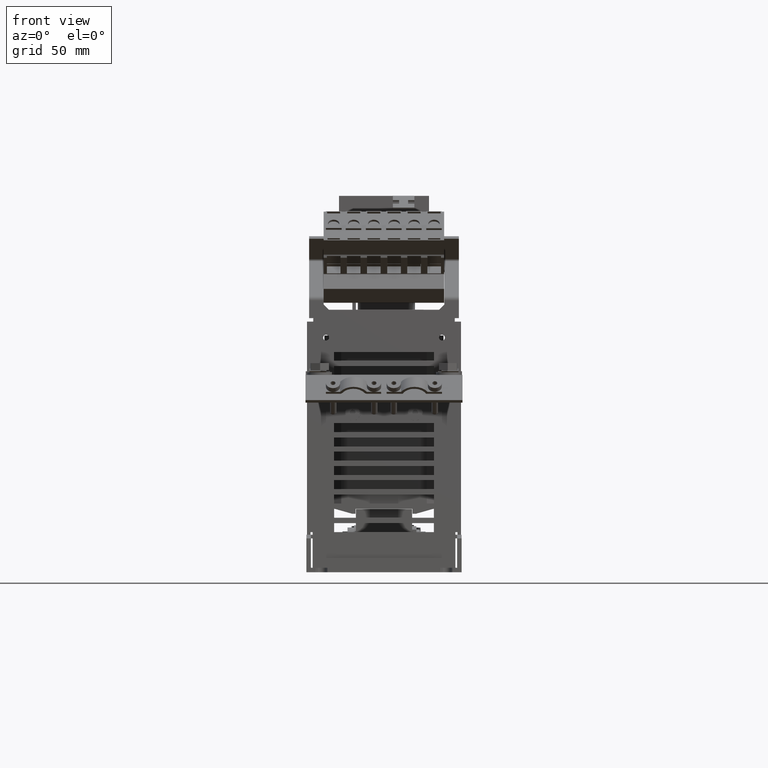
[diagram: clean part render]
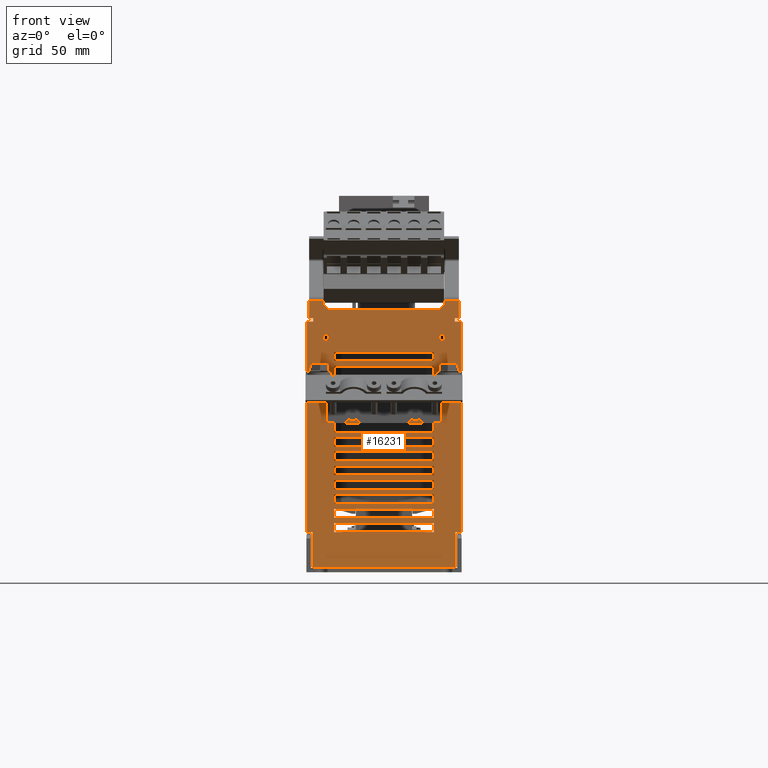
[diagram: same view with one face highlighted and labeled with its STEP entity id]
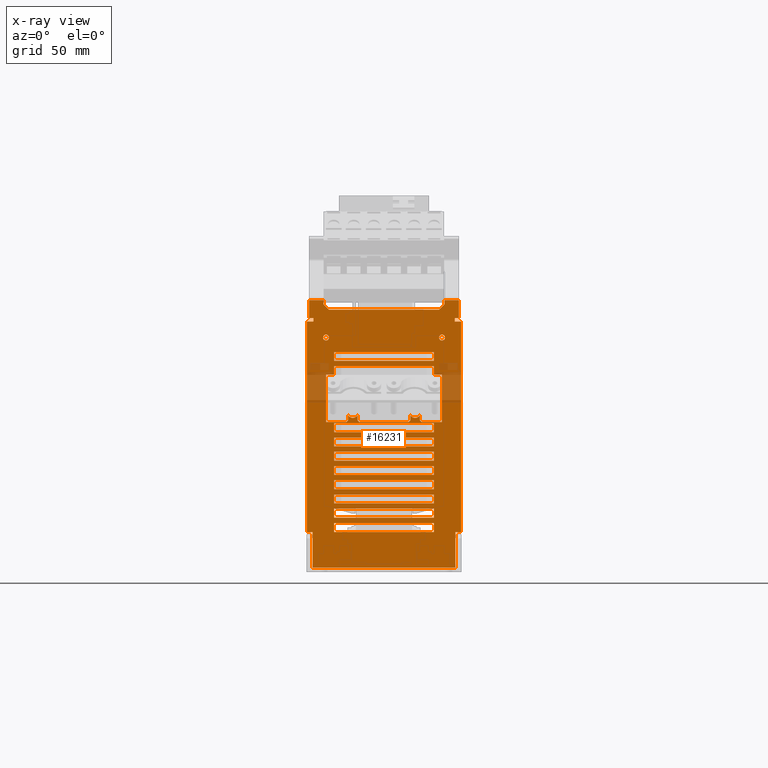
[diagram: x-ray of the same camera — body ghosted, the highlighted face saturated]
A machine part, front view. The second image highlights one B-rep face of the part: STEP entity #16231.
The next image is the same camera in x-ray: the body ghosted, the highlighted face saturated — about 6% of this face is hidden behind the body in this view.
In plain terms, the highlighted planar face has unit normal (0, -1, 0).
Its self-contained STEP definition (entity closure, byte-faithful):
#840=DIRECTION('',(0.E0,0.E0,1.E0));
#841=VECTOR('',#840,2.65E1);
#842=CARTESIAN_POINT('',(3.25E1,-1.21E2,8.165E1));
#843=LINE('',#842,#841);
#848=DIRECTION('',(0.E0,0.E0,-1.E0));
#849=VECTOR('',#848,1.18E2);
#850=CARTESIAN_POINT('',(4.32E1,-1.21E2,1.38E2));
#851=LINE('',#850,#849);
#852=DIRECTION('',(1.E0,0.E0,0.E0));
#853=VECTOR('',#852,3.2E0);
#854=CARTESIAN_POINT('',(4.E1,-1.21E2,2.E1));
#855=LINE('',#854,#853);
#856=DIRECTION('',(0.E0,0.E0,1.E0));
#857=VECTOR('',#856,2.E1);
#858=CARTESIAN_POINT('',(4.E1,-1.21E2,-5.426770144368E-13));
#859=LINE('',#858,#857);
#860=DIRECTION('',(0.E0,0.E0,-1.E0));
#861=VECTOR('',#860,2.E1);
#862=CARTESIAN_POINT('',(-4.E1,-1.21E2,2.E1));
#863=LINE('',#862,#861);
#864=DIRECTION('',(1.E0,0.E0,0.E0));
#865=VECTOR('',#864,3.2E0);
#866=CARTESIAN_POINT('',(-4.32E1,-1.21E2,2.E1));
#867=LINE('',#866,#865);
#868=DIRECTION('',(0.E0,0.E0,1.E0));
#869=VECTOR('',#868,1.18E2);
#870=CARTESIAN_POINT('',(-4.32E1,-1.21E2,2.E1));
#871=LINE('',#870,#869);
#872=DIRECTION('',(-1.E0,0.E0,0.E0));
#873=VECTOR('',#872,3.5E0);
#874=CARTESIAN_POINT('',(-3.97E1,-1.21E2,1.38E2));
#875=LINE('',#874,#873);
#876=DIRECTION('',(0.E0,0.E0,-1.E0));
#877=VECTOR('',#876,2.E0);
#878=CARTESIAN_POINT('',(-3.97E1,-1.21E2,1.4E2));
#879=LINE('',#878,#877);
#880=DIRECTION('',(-1.E0,0.E0,0.E0));
#881=VECTOR('',#880,8.149800000002E0);
#882=CARTESIAN_POINT('',(-3.38502E1,-1.21E2,1.5E2));
#883=LINE('',#882,#881);
#884=DIRECTION('',(1.032742452712E-4,0.E0,-9.999999946672E-1));
#885=VECTOR('',#884,9.682956180222E-1);
#886=CARTESIAN_POINT('',(-3.38502E1,-1.21E2,1.5E2));
#887=LINE('',#886,#885);
#888=DIRECTION('',(7.165725890175E-5,0.E0,-9.999999974326E-1));
#889=VECTOR('',#888,1.395532018732E0);
#890=CARTESIAN_POINT('',(-3.38501E1,-1.21E2,1.490317043871E2));
#891=LINE('',#890,#889);
#892=DIRECTION('',(7.071067811866E-1,0.E0,-7.071067811865E-1));
#893=VECTOR('',#892,4.242640687119E0);
#894=CARTESIAN_POINT('',(-3.385E1,-1.21E2,1.476361723720E2));
#895=LINE('',#894,#893);
#896=DIRECTION('',(1.E0,0.E0,0.E0));
#897=VECTOR('',#896,6.17E1);
#898=CARTESIAN_POINT('',(-3.085E1,-1.21E2,1.446361723720E2));
#899=LINE('',#898,#897);
#900=DIRECTION('',(7.071067811866E-1,0.E0,7.071067811865E-1));
#901=VECTOR('',#900,4.242640687119E0);
#902=CARTESIAN_POINT('',(3.085E1,-1.21E2,1.446361723720E2));
#903=LINE('',#902,#901);
#904=DIRECTION('',(0.E0,0.E0,-1.E0));
#905=VECTOR('',#904,2.363827628008E0);
#906=CARTESIAN_POINT('',(3.385E1,-1.21E2,1.5E2));
#907=LINE('',#906,#905);
#908=DIRECTION('',(-1.E0,0.E0,0.E0));
#909=VECTOR('',#908,8.15E0);
#910=CARTESIAN_POINT('',(4.2E1,-1.21E2,1.5E2));
#911=LINE('',#910,#909);
#912=DIRECTION('',(0.E0,0.E0,1.E0));
#913=VECTOR('',#912,2.E0);
#914=CARTESIAN_POINT('',(3.97E1,-1.21E2,1.38E2));
#915=LINE('',#914,#913);
#916=DIRECTION('',(-1.E0,0.E0,0.E0));
#917=VECTOR('',#916,3.5E0);
#918=CARTESIAN_POINT('',(4.32E1,-1.21E2,1.38E2));
#919=LINE('',#918,#917);
#920=DIRECTION('',(0.E0,0.E0,1.E0));
#921=VECTOR('',#920,5.E0);
#922=CARTESIAN_POINT('',(2.8E1,-1.21E2,2.E1));
#923=LINE('',#922,#921);
#924=DIRECTION('',(-1.E0,0.E0,0.E0));
#925=VECTOR('',#924,5.6E1);
#926=CARTESIAN_POINT('',(2.8E1,-1.21E2,2.5E1));
#927=LINE('',#926,#925);
#928=DIRECTION('',(0.E0,0.E0,-1.E0));
#929=VECTOR('',#928,5.E0);
#930=CARTESIAN_POINT('',(-2.8E1,-1.21E2,2.5E1));
#931=LINE('',#930,#929);
#932=DIRECTION('',(1.E0,0.E0,0.E0));
#933=VECTOR('',#932,5.6E1);
#934=CARTESIAN_POINT('',(-2.8E1,-1.21E2,2.E1));
#935=LINE('',#934,#933);
#936=DIRECTION('',(0.E0,0.E0,1.E0));
#937=VECTOR('',#936,5.E0);
#938=CARTESIAN_POINT('',(2.8E1,-1.21E2,2.8E1));
#939=LINE('',#938,#937);
#940=DIRECTION('',(-1.E0,0.E0,0.E0));
#941=VECTOR('',#940,5.6E1);
#942=CARTESIAN_POINT('',(2.8E1,-1.21E2,3.3E1));
#943=LINE('',#942,#941);
#944=DIRECTION('',(0.E0,0.E0,-1.E0));
#945=VECTOR('',#944,5.E0);
#946=CARTESIAN_POINT('',(-2.8E1,-1.21E2,3.3E1));
#947=LINE('',#946,#945);
#948=DIRECTION('',(1.E0,0.E0,0.E0));
#949=VECTOR('',#948,5.6E1);
#950=CARTESIAN_POINT('',(-2.8E1,-1.21E2,2.8E1));
#951=LINE('',#950,#949);
#952=DIRECTION('',(0.E0,0.E0,1.E0));
#953=VECTOR('',#952,5.E0);
#954=CARTESIAN_POINT('',(2.8E1,-1.21E2,3.6E1));
#955=LINE('',#954,#953);
#956=DIRECTION('',(-1.E0,0.E0,0.E0));
#957=VECTOR('',#956,5.6E1);
#958=CARTESIAN_POINT('',(2.8E1,-1.21E2,4.1E1));
#959=LINE('',#958,#957);
#960=DIRECTION('',(0.E0,0.E0,-1.E0));
#961=VECTOR('',#960,5.E0);
#962=CARTESIAN_POINT('',(-2.8E1,-1.21E2,4.1E1));
#963=LINE('',#962,#961);
#964=DIRECTION('',(1.E0,0.E0,0.E0));
#965=VECTOR('',#964,5.6E1);
#966=CARTESIAN_POINT('',(-2.8E1,-1.21E2,3.6E1));
#967=LINE('',#966,#965);
#968=DIRECTION('',(0.E0,0.E0,1.E0));
#969=VECTOR('',#968,5.E0);
#970=CARTESIAN_POINT('',(2.8E1,-1.21E2,4.4E1));
#971=LINE('',#970,#969);
#972=DIRECTION('',(-1.E0,0.E0,0.E0));
#973=VECTOR('',#972,5.6E1);
#974=CARTESIAN_POINT('',(2.8E1,-1.21E2,4.9E1));
#975=LINE('',#974,#973);
#976=DIRECTION('',(0.E0,0.E0,-1.E0));
#977=VECTOR('',#976,5.E0);
#978=CARTESIAN_POINT('',(-2.8E1,-1.21E2,4.9E1));
#979=LINE('',#978,#977);
#980=DIRECTION('',(1.E0,0.E0,0.E0));
#981=VECTOR('',#980,5.6E1);
#982=CARTESIAN_POINT('',(-2.8E1,-1.21E2,4.4E1));
#983=LINE('',#982,#981);
#984=DIRECTION('',(0.E0,0.E0,1.E0));
#985=VECTOR('',#984,5.E0);
#986=CARTESIAN_POINT('',(2.8E1,-1.21E2,5.2E1));
#987=LINE('',#986,#985);
#988=DIRECTION('',(-1.E0,0.E0,0.E0));
#989=VECTOR('',#988,5.6E1);
#990=CARTESIAN_POINT('',(2.8E1,-1.21E2,5.7E1));
#991=LINE('',#990,#989);
#992=DIRECTION('',(0.E0,0.E0,-1.E0));
#993=VECTOR('',#992,5.E0);
#994=CARTESIAN_POINT('',(-2.8E1,-1.21E2,5.7E1));
#995=LINE('',#994,#993);
#996=DIRECTION('',(1.E0,0.E0,0.E0));
#997=VECTOR('',#996,5.6E1);
#998=CARTESIAN_POINT('',(-2.8E1,-1.21E2,5.2E1));
#999=LINE('',#998,#997);
#1000=DIRECTION('',(0.E0,0.E0,1.E0));
#1001=VECTOR('',#1000,5.E0);
#1002=CARTESIAN_POINT('',(2.8E1,-1.21E2,6.E1));
#1003=LINE('',#1002,#1001);
#1004=DIRECTION('',(-1.E0,0.E0,0.E0));
#1005=VECTOR('',#1004,5.6E1);
#1006=CARTESIAN_POINT('',(2.8E1,-1.21E2,6.5E1));
#1007=LINE('',#1006,#1005);
#1008=DIRECTION('',(0.E0,0.E0,-1.E0));
#1009=VECTOR('',#1008,5.E0);
#1010=CARTESIAN_POINT('',(-2.8E1,-1.21E2,6.5E1));
#1011=LINE('',#1010,#1009);
#1012=DIRECTION('',(1.E0,0.E0,0.E0));
#1013=VECTOR('',#1012,5.6E1);
#1014=CARTESIAN_POINT('',(-2.8E1,-1.21E2,6.E1));
#1015=LINE('',#1014,#1013);
#1016=DIRECTION('',(-1.E0,0.E0,0.E0));
#1017=VECTOR('',#1016,5.6E1);
#1018=CARTESIAN_POINT('',(2.8E1,-1.21E2,7.3E1));
#1019=LINE('',#1018,#1017);
#1020=DIRECTION('',(0.E0,0.E0,-1.E0));
#1021=VECTOR('',#1020,5.E0);
#1022=CARTESIAN_POINT('',(-2.8E1,-1.21E2,7.3E1));
#1023=LINE('',#1022,#1021);
#1024=DIRECTION('',(1.E0,0.E0,0.E0));
#1025=VECTOR('',#1024,5.6E1);
#1026=CARTESIAN_POINT('',(-2.8E1,-1.21E2,6.8E1));
#1027=LINE('',#1026,#1025);
#1028=DIRECTION('',(0.E0,0.E0,1.E0));
#1029=VECTOR('',#1028,5.E0);
#1030=CARTESIAN_POINT('',(2.8E1,-1.21E2,6.8E1));
#1031=LINE('',#1030,#1029);
#1032=DIRECTION('',(0.E0,0.E0,1.E0));
#1033=VECTOR('',#1032,5.E0);
#1034=CARTESIAN_POINT('',(2.8E1,-1.21E2,7.6E1));
#1035=LINE('',#1034,#1033);
#1036=DIRECTION('',(-1.E0,0.E0,0.E0));
#1037=VECTOR('',#1036,5.6E1);
#1038=CARTESIAN_POINT('',(2.8E1,-1.21E2,8.1E1));
#1039=LINE('',#1038,#1037);
#1040=DIRECTION('',(0.E0,0.E0,-1.E0));
#1041=VECTOR('',#1040,5.E0);
#1042=CARTESIAN_POINT('',(-2.8E1,-1.21E2,8.1E1));
#1043=LINE('',#1042,#1041);
#1044=DIRECTION('',(1.E0,0.E0,0.E0));
#1045=VECTOR('',#1044,5.6E1);
#1046=CARTESIAN_POINT('',(-2.8E1,-1.21E2,7.6E1));
#1047=LINE('',#1046,#1045);
#1048=DIRECTION('',(0.E0,0.E0,1.E0));
#1049=VECTOR('',#1048,5.E0);
#1050=CARTESIAN_POINT('',(2.8E1,-1.21E2,1.16E2));
#1051=LINE('',#1050,#1049);
#1052=DIRECTION('',(-1.E0,0.E0,0.E0));
#1053=VECTOR('',#1052,5.6E1);
#1054=CARTESIAN_POINT('',(2.8E1,-1.21E2,1.21E2));
#1055=LINE('',#1054,#1053);
#1056=DIRECTION('',(0.E0,0.E0,-1.E0));
#1057=VECTOR('',#1056,5.E0);
#1058=CARTESIAN_POINT('',(-2.8E1,-1.21E2,1.21E2));
#1059=LINE('',#1058,#1057);
#1060=DIRECTION('',(1.E0,0.E0,0.E0));
#1061=VECTOR('',#1060,5.6E1);
#1062=CARTESIAN_POINT('',(-2.8E1,-1.21E2,1.16E2));
#1063=LINE('',#1062,#1061);
#1064=CARTESIAN_POINT('',(3.25E1,-1.21E2,1.29E2));
#1065=DIRECTION('',(0.E0,-1.E0,0.E0));
#1066=DIRECTION('',(-1.E0,0.E0,0.E0));
#1067=AXIS2_PLACEMENT_3D('',#1064,#1065,#1066);
#1069=CARTESIAN_POINT('',(3.25E1,-1.21E2,1.29E2));
#1070=DIRECTION('',(0.E0,-1.E0,0.E0));
#1071=DIRECTION('',(1.E0,0.E0,0.E0));
#1072=AXIS2_PLACEMENT_3D('',#1069,#1070,#1071);
#1074=CARTESIAN_POINT('',(-3.25E1,-1.21E2,1.29E2));
#1075=DIRECTION('',(0.E0,-1.E0,0.E0));
#1076=DIRECTION('',(-1.E0,0.E0,0.E0));
#1077=AXIS2_PLACEMENT_3D('',#1074,#1075,#1076);
#1079=CARTESIAN_POINT('',(-3.25E1,-1.21E2,1.29E2));
#1080=DIRECTION('',(0.E0,-1.E0,0.E0));
#1081=DIRECTION('',(1.E0,0.E0,0.E0));
#1082=AXIS2_PLACEMENT_3D('',#1079,#1080,#1081);
#1084=CARTESIAN_POINT('',(1.75E1,-1.21E2,8.7E1));
#1085=DIRECTION('',(0.E0,1.E0,0.E0));
#1086=DIRECTION('',(8.833333333333E-1,0.E0,-4.687453703475E-1));
#1087=AXIS2_PLACEMENT_3D('',#1084,#1085,#1086);
#1089=DIRECTION('',(0.E0,1.448233138042E-14,1.E0));
#1090=VECTOR('',#1089,2.943763888957E0);
#1091=CARTESIAN_POINT('',(2.015E1,-1.21E2,8.265E1));
#1092=LINE('',#1091,#1090);
#1093=DIRECTION('',(-7.071067811865E-1,-3.014577520673E-14,7.071067811866E-1));
#1094=VECTOR('',#1093,1.414213562373E0);
#1095=CARTESIAN_POINT('',(2.115E1,-1.21E2,8.165E1));
#1096=LINE('',#1095,#1094);
#1097=DIRECTION('',(1.E0,0.E0,0.E0));
#1098=VECTOR('',#1097,1.135E1);
#1099=CARTESIAN_POINT('',(2.115E1,-1.21E2,8.165E1));
#1100=LINE('',#1099,#1098);
#1101=DIRECTION('',(1.E0,0.E0,0.E0));
#1102=VECTOR('',#1101,4.5E0);
#1103=CARTESIAN_POINT('',(2.8E1,-1.21E2,1.0815E2));
#1104=LINE('',#1103,#1102);
#1105=DIRECTION('',(0.E0,0.E0,1.E0));
#1106=VECTOR('',#1105,4.85E0);
#1107=CARTESIAN_POINT('',(2.8E1,-1.21E2,1.0815E2));
#1108=LINE('',#1107,#1106);
#1109=DIRECTION('',(-1.E0,0.E0,0.E0));
#1110=VECTOR('',#1109,5.6E1);
#1111=CARTESIAN_POINT('',(2.8E1,-1.21E2,1.13E2));
#1112=LINE('',#1111,#1110);
#1113=DIRECTION('',(0.E0,0.E0,-1.E0));
#1114=VECTOR('',#1113,4.85E0);
#1115=CARTESIAN_POINT('',(-2.8E1,-1.21E2,1.13E2));
#1116=LINE('',#1115,#1114);
#1117=DIRECTION('',(1.E0,0.E0,0.E0));
#1118=VECTOR('',#1117,4.5E0);
#1119=CARTESIAN_POINT('',(-3.25E1,-1.21E2,1.0815E2));
#1120=LINE('',#1119,#1118);
#1121=DIRECTION('',(1.E0,0.E0,0.E0));
#1122=VECTOR('',#1121,1.135E1);
#1123=CARTESIAN_POINT('',(-3.25E1,-1.21E2,8.165E1));
#1124=LINE('',#1123,#1122);
#1125=DIRECTION('',(-7.071067811865E-1,2.009718347115E-14,-7.071067811866E-1));
#1126=VECTOR('',#1125,1.414213562373E0);
#1127=CARTESIAN_POINT('',(-2.015E1,-1.21E2,8.265E1));
#1128=LINE('',#1127,#1126);
#1129=DIRECTION('',(0.E0,-1.448233138042E-14,-1.E0));
#1130=VECTOR('',#1129,2.943763888957E0);
#1131=CARTESIAN_POINT('',(-2.015E1,-1.21E2,8.559376388896E1));
#1132=LINE('',#1131,#1130);
#1133=CARTESIAN_POINT('',(-1.75E1,-1.21E2,8.7E1));
#1134=DIRECTION('',(0.E0,1.E0,0.E0));
#1135=DIRECTION('',(8.833333333333E-1,0.E0,-4.687453703475E-1));
#1136=AXIS2_PLACEMENT_3D('',#1133,#1134,#1135);
#1138=DIRECTION('',(0.E0,1.930977517390E-14,1.E0));
#1139=VECTOR('',#1138,2.943763888958E0);
#1140=CARTESIAN_POINT('',(-1.485E1,-1.21E2,8.265E1));
#1141=LINE('',#1140,#1139);
#1142=DIRECTION('',(-7.071067811865E-1,-3.014577520673E-14,7.071067811866E-1));
#1143=VECTOR('',#1142,1.414213562373E0);
#1144=CARTESIAN_POINT('',(-1.385E1,-1.21E2,8.165E1));
#1145=LINE('',#1144,#1143);
#1146=DIRECTION('',(1.E0,0.E0,0.E0));
#1147=VECTOR('',#1146,2.77E1);
#1148=CARTESIAN_POINT('',(-1.385E1,-1.21E2,8.165E1));
#1149=LINE('',#1148,#1147);
#1150=DIRECTION('',(-7.071067811866E-1,1.004859173558E-14,-7.071067811865E-1));
#1151=VECTOR('',#1150,1.414213562373E0);
#1152=CARTESIAN_POINT('',(1.485E1,-1.21E2,8.265E1));
#1153=LINE('',#1152,#1151);
#1154=DIRECTION('',(0.E0,0.E0,-1.E0));
#1155=VECTOR('',#1154,2.943763888957E0);
#1156=CARTESIAN_POINT('',(1.485E1,-1.21E2,8.559376388896E1));
#1157=LINE('',#1156,#1155);
#5305=DIRECTION('',(0.E0,3.268496584496E-14,-1.E0));
#5306=VECTOR('',#5305,1.E1);
#5307=CARTESIAN_POINT('',(-4.2E1,-1.21E2,1.5E2));
#5308=LINE('',#5307,#5306);
#5309=DIRECTION('',(-1.E0,-1.482871796369E-13,0.E0));
#5310=VECTOR('',#5309,2.3E0);
#5311=CARTESIAN_POINT('',(4.2E1,-1.21E2,1.4E2));
#5312=LINE('',#5311,#5310);
#5313=DIRECTION('',(-1.E0,1.421085471520E-13,1.235726496974E-14));
#5314=VECTOR('',#5313,2.3E0);
#5315=CARTESIAN_POINT('',(-3.97E1,-1.21E2,1.4E2));
#5316=LINE('',#5315,#5314);
#5329=DIRECTION('',(0.E0,3.410605131648E-14,-1.E0));
#5330=VECTOR('',#5329,1.E1);
#5331=CARTESIAN_POINT('',(4.2E1,-1.21E2,1.5E2));
#5332=LINE('',#5331,#5330);
#6039=DIRECTION('',(1.E0,0.E0,0.E0));
#6040=VECTOR('',#6039,8.E1);
#6041=CARTESIAN_POINT('',(-4.E1,-1.21E2,-5.417888360171E-13));
#6042=LINE('',#6041,#6040);
#9779=DIRECTION('',(0.E0,0.E0,-1.E0));
#9780=VECTOR('',#9779,2.65E1);
#9781=CARTESIAN_POINT('',(-3.25E1,-1.21E2,1.0815E2));
#9782=LINE('',#9781,#9780);
#12029=CARTESIAN_POINT('',(-4.32E1,-1.21E2,2.E1));
#12030=CARTESIAN_POINT('',(-4.E1,-1.21E2,2.E1));
#12031=VERTEX_POINT('',#12029);
#12032=VERTEX_POINT('',#12030);
#12033=CARTESIAN_POINT('',(4.E1,-1.21E2,2.E1));
#12034=CARTESIAN_POINT('',(4.32E1,-1.21E2,2.E1));
#12035=VERTEX_POINT('',#12033);
#12036=VERTEX_POINT('',#12034);
#12037=CARTESIAN_POINT('',(4.32E1,-1.21E2,1.38E2));
#12038=CARTESIAN_POINT('',(3.97E1,-1.21E2,1.38E2));
#12039=VERTEX_POINT('',#12037);
#12040=VERTEX_POINT('',#12038);
#12041=CARTESIAN_POINT('',(-3.97E1,-1.21E2,1.38E2));
#12042=CARTESIAN_POINT('',(-4.32E1,-1.21E2,1.38E2));
#12043=VERTEX_POINT('',#12041);
#12044=VERTEX_POINT('',#12042);
#12053=CARTESIAN_POINT('',(-4.E1,-1.21E2,-5.417888360171E-13));
#12054=CARTESIAN_POINT('',(4.E1,-1.21E2,-5.426770144368E-13));
#12055=VERTEX_POINT('',#12053);
#12056=VERTEX_POINT('',#12054);
#12101=CARTESIAN_POINT('',(4.2E1,-1.21E2,1.4E2));
#12103=VERTEX_POINT('',#12101);
#12123=CARTESIAN_POINT('',(4.2E1,-1.21E2,1.5E2));
#12124=VERTEX_POINT('',#12123);
#12125=CARTESIAN_POINT('',(-4.2E1,-1.21E2,1.4E2));
#12127=VERTEX_POINT('',#12125);
#12147=CARTESIAN_POINT('',(-4.2E1,-1.21E2,1.5E2));
#12148=VERTEX_POINT('',#12147);
#12150=CARTESIAN_POINT('',(3.97E1,-1.21E2,1.4E2));
#12152=VERTEX_POINT('',#12150);
#12154=CARTESIAN_POINT('',(-3.97E1,-1.21E2,1.4E2));
#12156=VERTEX_POINT('',#12154);
#12181=CARTESIAN_POINT('',(2.8E1,-1.21E2,2.E1));
#12182=CARTESIAN_POINT('',(2.8E1,-1.21E2,2.5E1));
#12183=VERTEX_POINT('',#12181);
#12184=VERTEX_POINT('',#12182);
#12185=CARTESIAN_POINT('',(-2.8E1,-1.21E2,2.5E1));
#12186=VERTEX_POINT('',#12185);
#12187=CARTESIAN_POINT('',(-2.8E1,-1.21E2,2.E1));
#12188=VERTEX_POINT('',#12187);
#12189=CARTESIAN_POINT('',(2.8E1,-1.21E2,2.8E1));
#12190=CARTESIAN_POINT('',(2.8E1,-1.21E2,3.3E1));
#12191=VERTEX_POINT('',#12189);
#12192=VERTEX_POINT('',#12190);
#12193=CARTESIAN_POINT('',(-2.8E1,-1.21E2,3.3E1));
#12194=VERTEX_POINT('',#12193);
#12195=CARTESIAN_POINT('',(-2.8E1,-1.21E2,2.8E1));
#12196=VERTEX_POINT('',#12195);
#12197=CARTESIAN_POINT('',(2.8E1,-1.21E2,3.6E1));
#12198=CARTESIAN_POINT('',(2.8E1,-1.21E2,4.1E1));
#12199=VERTEX_POINT('',#12197);
#12200=VERTEX_POINT('',#12198);
#12201=CARTESIAN_POINT('',(-2.8E1,-1.21E2,4.1E1));
#12202=VERTEX_POINT('',#12201);
#12203=CARTESIAN_POINT('',(-2.8E1,-1.21E2,3.6E1));
#12204=VERTEX_POINT('',#12203);
#12205=CARTESIAN_POINT('',(2.8E1,-1.21E2,4.4E1));
#12206=CARTESIAN_POINT('',(2.8E1,-1.21E2,4.9E1));
#12207=VERTEX_POINT('',#12205);
#12208=VERTEX_POINT('',#12206);
#12209=CARTESIAN_POINT('',(-2.8E1,-1.21E2,4.9E1));
#12210=VERTEX_POINT('',#12209);
#12211=CARTESIAN_POINT('',(-2.8E1,-1.21E2,4.4E1));
#12212=VERTEX_POINT('',#12211);
#12213=CARTESIAN_POINT('',(2.8E1,-1.21E2,5.2E1));
#12214=CARTESIAN_POINT('',(2.8E1,-1.21E2,5.7E1));
#12215=VERTEX_POINT('',#12213);
#12216=VERTEX_POINT('',#12214);
#12217=CARTESIAN_POINT('',(-2.8E1,-1.21E2,5.7E1));
#12218=VERTEX_POINT('',#12217);
#12219=CARTESIAN_POINT('',(-2.8E1,-1.21E2,5.2E1));
#12220=VERTEX_POINT('',#12219);
#12221=CARTESIAN_POINT('',(2.8E1,-1.21E2,6.E1));
#12222=CARTESIAN_POINT('',(2.8E1,-1.21E2,6.5E1));
#12223=VERTEX_POINT('',#12221);
#12224=VERTEX_POINT('',#12222);
#12225=CARTESIAN_POINT('',(-2.8E1,-1.21E2,6.5E1));
#12226=VERTEX_POINT('',#12225);
#12227=CARTESIAN_POINT('',(-2.8E1,-1.21E2,6.E1));
#12228=VERTEX_POINT('',#12227);
#12229=CARTESIAN_POINT('',(2.8E1,-1.21E2,7.3E1));
#12230=CARTESIAN_POINT('',(-2.8E1,-1.21E2,7.3E1));
#12231=VERTEX_POINT('',#12229);
#12232=VERTEX_POINT('',#12230);
#12233=CARTESIAN_POINT('',(-2.8E1,-1.21E2,6.8E1));
#12234=VERTEX_POINT('',#12233);
#12235=CARTESIAN_POINT('',(2.8E1,-1.21E2,6.8E1));
#12236=VERTEX_POINT('',#12235);
#12237=CARTESIAN_POINT('',(2.8E1,-1.21E2,7.6E1));
#12238=CARTESIAN_POINT('',(2.8E1,-1.21E2,8.1E1));
#12239=VERTEX_POINT('',#12237);
#12240=VERTEX_POINT('',#12238);
#12241=CARTESIAN_POINT('',(-2.8E1,-1.21E2,8.1E1));
#12242=VERTEX_POINT('',#12241);
#12243=CARTESIAN_POINT('',(-2.8E1,-1.21E2,7.6E1));
#12244=VERTEX_POINT('',#12243);
#12245=CARTESIAN_POINT('',(2.8E1,-1.21E2,1.13E2));
#12246=CARTESIAN_POINT('',(-2.8E1,-1.21E2,1.13E2));
#12247=VERTEX_POINT('',#12245);
#12248=VERTEX_POINT('',#12246);
#12249=CARTESIAN_POINT('',(2.8E1,-1.21E2,1.16E2));
#12250=CARTESIAN_POINT('',(2.8E1,-1.21E2,1.21E2));
#12251=VERTEX_POINT('',#12249);
#12252=VERTEX_POINT('',#12250);
#12253=CARTESIAN_POINT('',(-2.8E1,-1.21E2,1.21E2));
#12254=VERTEX_POINT('',#12253);
#12255=CARTESIAN_POINT('',(-2.8E1,-1.21E2,1.16E2));
#12256=VERTEX_POINT('',#12255);
#12257=CARTESIAN_POINT('',(3.085E1,-1.21E2,1.29E2));
#12258=CARTESIAN_POINT('',(3.415E1,-1.21E2,1.29E2));
#12259=VERTEX_POINT('',#12257);
#12260=VERTEX_POINT('',#12258);
#12261=CARTESIAN_POINT('',(-3.415E1,-1.21E2,1.29E2));
#12262=CARTESIAN_POINT('',(-3.085E1,-1.21E2,1.29E2));
#12263=VERTEX_POINT('',#12261);
#12264=VERTEX_POINT('',#12262);
#12265=CARTESIAN_POINT('',(3.085E1,-1.21E2,1.446361723720E2));
#12266=CARTESIAN_POINT('',(3.385E1,-1.21E2,1.476361723720E2));
#12267=VERTEX_POINT('',#12265);
#12268=VERTEX_POINT('',#12266);
#12269=CARTESIAN_POINT('',(3.385E1,-1.21E2,1.5E2));
#12270=VERTEX_POINT('',#12269);
#12271=CARTESIAN_POINT('',(-3.385E1,-1.21E2,1.476361723720E2));
#12272=CARTESIAN_POINT('',(-3.085E1,-1.21E2,1.446361723720E2));
#12273=VERTEX_POINT('',#12271);
#12274=VERTEX_POINT('',#12272);
#12487=CARTESIAN_POINT('',(-3.38502E1,-1.21E2,1.5E2));
#12488=CARTESIAN_POINT('',(-3.38501E1,-1.21E2,1.490317043871E2));
#12489=VERTEX_POINT('',#12487);
#12490=VERTEX_POINT('',#12488);
#13869=CARTESIAN_POINT('',(2.8E1,-1.21E2,1.0815E2));
#13871=VERTEX_POINT('',#13869);
#13873=CARTESIAN_POINT('',(-2.8E1,-1.21E2,1.0815E2));
#13875=VERTEX_POINT('',#13873);
#13960=CARTESIAN_POINT('',(-3.25E1,-1.21E2,1.0815E2));
#13962=VERTEX_POINT('',#13960);
#13964=CARTESIAN_POINT('',(-3.25E1,-1.21E2,8.165E1));
#13966=VERTEX_POINT('',#13964);
#13976=CARTESIAN_POINT('',(3.25E1,-1.21E2,1.0815E2));
#13978=VERTEX_POINT('',#13976);
#13980=CARTESIAN_POINT('',(3.25E1,-1.21E2,8.165E1));
#13982=VERTEX_POINT('',#13980);
#14068=CARTESIAN_POINT('',(-2.115E1,-1.21E2,8.165E1));
#14070=VERTEX_POINT('',#14068);
#14072=CARTESIAN_POINT('',(-1.385E1,-1.21E2,8.165E1));
#14074=VERTEX_POINT('',#14072);
#14076=CARTESIAN_POINT('',(1.385E1,-1.21E2,8.165E1));
#14078=VERTEX_POINT('',#14076);
#14080=CARTESIAN_POINT('',(2.115E1,-1.21E2,8.165E1));
#14082=VERTEX_POINT('',#14080);
#14092=CARTESIAN_POINT('',(-2.015E1,-1.21E2,8.265E1));
#14093=VERTEX_POINT('',#14092);
#14094=CARTESIAN_POINT('',(-1.485E1,-1.21E2,8.265E1));
#14095=VERTEX_POINT('',#14094);
#14096=CARTESIAN_POINT('',(1.485E1,-1.21E2,8.265E1));
#14097=VERTEX_POINT('',#14096);
#14098=CARTESIAN_POINT('',(2.015E1,-1.21E2,8.265E1));
#14099=VERTEX_POINT('',#14098);
#14732=CARTESIAN_POINT('',(2.015E1,-1.21E2,8.559376388896E1));
#14733=CARTESIAN_POINT('',(1.485E1,-1.21E2,8.559376388896E1));
#14734=VERTEX_POINT('',#14732);
#14735=VERTEX_POINT('',#14733);
#14736=CARTESIAN_POINT('',(-1.485E1,-1.21E2,8.559376388896E1));
#14737=CARTESIAN_POINT('',(-2.015E1,-1.21E2,8.559376388896E1));
#14738=VERTEX_POINT('',#14736);
#14739=VERTEX_POINT('',#14737);
#16037=CARTESIAN_POINT('',(1.970275794368E-13,-1.21E2,4.485301019486E-14));
#16038=DIRECTION('',(0.E0,-1.E0,0.E0));
#16039=DIRECTION('',(1.E0,0.E0,0.E0));
#16040=AXIS2_PLACEMENT_3D('',#16037,#16038,#16039);
#16041=PLANE('',#16040);
#16043=ORIENTED_EDGE('',*,*,#16042,.T.);
#16045=ORIENTED_EDGE('',*,*,#16044,.F.);
#16047=ORIENTED_EDGE('',*,*,#16046,.F.);
#16049=ORIENTED_EDGE('',*,*,#16048,.F.);
#16051=ORIENTED_EDGE('',*,*,#16050,.F.);
#16053=ORIENTED_EDGE('',*,*,#16052,.F.);
#16055=ORIENTED_EDGE('',*,*,#16054,.T.);
#16057=ORIENTED_EDGE('',*,*,#16056,.F.);
#16059=ORIENTED_EDGE('',*,*,#16058,.F.);
#16061=ORIENTED_EDGE('',*,*,#16060,.T.);
#16063=ORIENTED_EDGE('',*,*,#16062,.F.);
#16065=ORIENTED_EDGE('',*,*,#16064,.F.);
#16067=ORIENTED_EDGE('',*,*,#16066,.T.);
#16069=ORIENTED_EDGE('',*,*,#16068,.T.);
#16071=ORIENTED_EDGE('',*,*,#16070,.T.);
#16073=ORIENTED_EDGE('',*,*,#16072,.T.);
#16075=ORIENTED_EDGE('',*,*,#16074,.T.);
#16077=ORIENTED_EDGE('',*,*,#16076,.F.);
#16079=ORIENTED_EDGE('',*,*,#16078,.F.);
#16081=ORIENTED_EDGE('',*,*,#16080,.T.);
#16083=ORIENTED_EDGE('',*,*,#16082,.T.);
#16085=ORIENTED_EDGE('',*,*,#16084,.F.);
#16087=ORIENTED_EDGE('',*,*,#16086,.F.);
#16088=EDGE_LOOP('',(#16043,#16045,#16047,#16049,#16051,#16053,#16055,#16057,
#16059,#16061,#16063,#16065,#16067,#16069,#16071,#16073,#16075,#16077,#16079,
#16081,#16083,#16085,#16087));
#16089=FACE_OUTER_BOUND('',#16088,.F.);
#16091=ORIENTED_EDGE('',*,*,#16090,.T.);
#16093=ORIENTED_EDGE('',*,*,#16092,.T.);
#16095=ORIENTED_EDGE('',*,*,#16094,.T.);
#16097=ORIENTED_EDGE('',*,*,#16096,.T.);
#16098=EDGE_LOOP('',(#16091,#16093,#16095,#16097));
#16099=FACE_BOUND('',#16098,.F.);
#16101=ORIENTED_EDGE('',*,*,#16100,.T.);
#16103=ORIENTED_EDGE('',*,*,#16102,.T.);
#16105=ORIENTED_EDGE('',*,*,#16104,.T.);
#16107=ORIENTED_EDGE('',*,*,#16106,.T.);
#16108=EDGE_LOOP('',(#16101,#16103,#16105,#16107));
#16109=FACE_BOUND('',#16108,.F.);
#16111=ORIENTED_EDGE('',*,*,#16110,.T.);
#16113=ORIENTED_EDGE('',*,*,#16112,.T.);
#16115=ORIENTED_EDGE('',*,*,#16114,.T.);
#16117=ORIENTED_EDGE('',*,*,#16116,.T.);
#16118=EDGE_LOOP('',(#16111,#16113,#16115,#16117));
#16119=FACE_BOUND('',#16118,.F.);
#16121=ORIENTED_EDGE('',*,*,#16120,.T.);
#16123=ORIENTED_EDGE('',*,*,#16122,.T.);
#16125=ORIENTED_EDGE('',*,*,#16124,.T.);
#16127=ORIENTED_EDGE('',*,*,#16126,.T.);
#16128=EDGE_LOOP('',(#16121,#16123,#16125,#16127));
#16129=FACE_BOUND('',#16128,.F.);
#16131=ORIENTED_EDGE('',*,*,#16130,.T.);
#16133=ORIENTED_EDGE('',*,*,#16132,.T.);
#16135=ORIENTED_EDGE('',*,*,#16134,.T.);
#16137=ORIENTED_EDGE('',*,*,#16136,.T.);
#16138=EDGE_LOOP('',(#16131,#16133,#16135,#16137));
#16139=FACE_BOUND('',#16138,.F.);
#16141=ORIENTED_EDGE('',*,*,#16140,.T.);
#16143=ORIENTED_EDGE('',*,*,#16142,.T.);
#16145=ORIENTED_EDGE('',*,*,#16144,.T.);
#16147=ORIENTED_EDGE('',*,*,#16146,.T.);
#16148=EDGE_LOOP('',(#16141,#16143,#16145,#16147));
#16149=FACE_BOUND('',#16148,.F.);
#16151=ORIENTED_EDGE('',*,*,#16150,.T.);
#16153=ORIENTED_EDGE('',*,*,#16152,.T.);
#16155=ORIENTED_EDGE('',*,*,#16154,.T.);
#16157=ORIENTED_EDGE('',*,*,#16156,.T.);
#16158=EDGE_LOOP('',(#16151,#16153,#16155,#16157));
#16159=FACE_BOUND('',#16158,.F.);
#16161=ORIENTED_EDGE('',*,*,#16160,.T.);
#16163=ORIENTED_EDGE('',*,*,#16162,.T.);
#16165=ORIENTED_EDGE('',*,*,#16164,.T.);
#16167=ORIENTED_EDGE('',*,*,#16166,.T.);
#16168=EDGE_LOOP('',(#16161,#16163,#16165,#16167));
#16169=FACE_BOUND('',#16168,.F.);
#16171=ORIENTED_EDGE('',*,*,#16170,.T.);
#16173=ORIENTED_EDGE('',*,*,#16172,.T.);
#16175=ORIENTED_EDGE('',*,*,#16174,.T.);
#16177=ORIENTED_EDGE('',*,*,#16176,.T.);
#16178=EDGE_LOOP('',(#16171,#16173,#16175,#16177));
#16179=FACE_BOUND('',#16178,.F.);
#16181=ORIENTED_EDGE('',*,*,#16180,.T.);
#16183=ORIENTED_EDGE('',*,*,#16182,.T.);
#16184=EDGE_LOOP('',(#16181,#16183));
#16185=FACE_BOUND('',#16184,.F.);
#16187=ORIENTED_EDGE('',*,*,#16186,.T.);
#16189=ORIENTED_EDGE('',*,*,#16188,.T.);
#16190=EDGE_LOOP('',(#16187,#16189));
#16191=FACE_BOUND('',#16190,.F.);
#16193=ORIENTED_EDGE('',*,*,#16192,.F.);
#16195=ORIENTED_EDGE('',*,*,#16194,.F.);
#16197=ORIENTED_EDGE('',*,*,#16196,.F.);
#16199=ORIENTED_EDGE('',*,*,#16198,.T.);
#16200=ORIENTED_EDGE('',*,*,#16024,.T.);
#16201=ORIENTED_EDGE('',*,*,#15695,.F.);
#16203=ORIENTED_EDGE('',*,*,#16202,.T.);
#16205=ORIENTED_EDGE('',*,*,#16204,.T.);
#16207=ORIENTED_EDGE('',*,*,#16206,.T.);
#16208=ORIENTED_EDGE('',*,*,#15691,.F.);
#16210=ORIENTED_EDGE('',*,*,#16209,.T.);
#16212=ORIENTED_EDGE('',*,*,#16211,.T.);
#16214=ORIENTED_EDGE('',*,*,#16213,.F.);
#16216=ORIENTED_EDGE('',*,*,#16215,.F.);
#16218=ORIENTED_EDGE('',*,*,#16217,.F.);
#16220=ORIENTED_EDGE('',*,*,#16219,.F.);
#16222=ORIENTED_EDGE('',*,*,#16221,.F.);
#16224=ORIENTED_EDGE('',*,*,#16223,.T.);
#16226=ORIENTED_EDGE('',*,*,#16225,.F.);
#16228=ORIENTED_EDGE('',*,*,#16227,.F.);
#16229=EDGE_LOOP('',(#16193,#16195,#16197,#16199,#16200,#16201,#16203,#16205,
#16207,#16208,#16210,#16212,#16214,#16216,#16218,#16220,#16222,#16224,#16226,
#16228));
#16230=FACE_BOUND('',#16229,.F.);
#16231=ADVANCED_FACE('',(#16089,#16099,#16109,#16119,#16129,#16139,#16149,
#16159,#16169,#16179,#16185,#16191,#16230),#16041,.T.);
#1068=CIRCLE('',#1067,1.65E0);
#1073=CIRCLE('',#1072,1.65E0);
#1078=CIRCLE('',#1077,1.65E0);
#1083=CIRCLE('',#1082,1.65E0);
#1088=CIRCLE('',#1087,3.E0);
#1137=CIRCLE('',#1136,3.E0);
#15691=EDGE_CURVE('',#13962,#13875,#1120,.T.);
#15695=EDGE_CURVE('',#13871,#13978,#1104,.T.);
#16024=EDGE_CURVE('',#13982,#13978,#843,.T.);
#16042=EDGE_CURVE('',#12039,#12036,#851,.T.);
#16044=EDGE_CURVE('',#12035,#12036,#855,.T.);
#16046=EDGE_CURVE('',#12056,#12035,#859,.T.);
#16048=EDGE_CURVE('',#12055,#12056,#6042,.T.);
#16050=EDGE_CURVE('',#12032,#12055,#863,.T.);
#16052=EDGE_CURVE('',#12031,#12032,#867,.T.);
#16054=EDGE_CURVE('',#12031,#12044,#871,.T.);
#16056=EDGE_CURVE('',#12043,#12044,#875,.T.);
#16058=EDGE_CURVE('',#12156,#12043,#879,.T.);
#16060=EDGE_CURVE('',#12156,#12127,#5316,.T.);
#16062=EDGE_CURVE('',#12148,#12127,#5308,.T.);
#16064=EDGE_CURVE('',#12489,#12148,#883,.T.);
#16066=EDGE_CURVE('',#12489,#12490,#887,.T.);
#16068=EDGE_CURVE('',#12490,#12273,#891,.T.);
#16070=EDGE_CURVE('',#12273,#12274,#895,.T.);
#16072=EDGE_CURVE('',#12274,#12267,#899,.T.);
#16074=EDGE_CURVE('',#12267,#12268,#903,.T.);
#16076=EDGE_CURVE('',#12270,#12268,#907,.T.);
#16078=EDGE_CURVE('',#12124,#12270,#911,.T.);
#16080=EDGE_CURVE('',#12124,#12103,#5332,.T.);
#16082=EDGE_CURVE('',#12103,#12152,#5312,.T.);
#16084=EDGE_CURVE('',#12040,#12152,#915,.T.);
#16086=EDGE_CURVE('',#12039,#12040,#919,.T.);
#16090=EDGE_CURVE('',#12183,#12184,#923,.T.);
#16092=EDGE_CURVE('',#12184,#12186,#927,.T.);
#16094=EDGE_CURVE('',#12186,#12188,#931,.T.);
#16096=EDGE_CURVE('',#12188,#12183,#935,.T.);
#16100=EDGE_CURVE('',#12191,#12192,#939,.T.);
#16102=EDGE_CURVE('',#12192,#12194,#943,.T.);
#16104=EDGE_CURVE('',#12194,#12196,#947,.T.);
#16106=EDGE_CURVE('',#12196,#12191,#951,.T.);
#16110=EDGE_CURVE('',#12199,#12200,#955,.T.);
#16112=EDGE_CURVE('',#12200,#12202,#959,.T.);
#16114=EDGE_CURVE('',#12202,#12204,#963,.T.);
#16116=EDGE_CURVE('',#12204,#12199,#967,.T.);
#16120=EDGE_CURVE('',#12207,#12208,#971,.T.);
#16122=EDGE_CURVE('',#12208,#12210,#975,.T.);
#16124=EDGE_CURVE('',#12210,#12212,#979,.T.);
#16126=EDGE_CURVE('',#12212,#12207,#983,.T.);
#16130=EDGE_CURVE('',#12215,#12216,#987,.T.);
#16132=EDGE_CURVE('',#12216,#12218,#991,.T.);
#16134=EDGE_CURVE('',#12218,#12220,#995,.T.);
#16136=EDGE_CURVE('',#12220,#12215,#999,.T.);
#16140=EDGE_CURVE('',#12223,#12224,#1003,.T.);
#16142=EDGE_CURVE('',#12224,#12226,#1007,.T.);
#16144=EDGE_CURVE('',#12226,#12228,#1011,.T.);
#16146=EDGE_CURVE('',#12228,#12223,#1015,.T.);
#16150=EDGE_CURVE('',#12231,#12232,#1019,.T.);
#16152=EDGE_CURVE('',#12232,#12234,#1023,.T.);
#16154=EDGE_CURVE('',#12234,#12236,#1027,.T.);
#16156=EDGE_CURVE('',#12236,#12231,#1031,.T.);
#16160=EDGE_CURVE('',#12239,#12240,#1035,.T.);
#16162=EDGE_CURVE('',#12240,#12242,#1039,.T.);
#16164=EDGE_CURVE('',#12242,#12244,#1043,.T.);
#16166=EDGE_CURVE('',#12244,#12239,#1047,.T.);
#16170=EDGE_CURVE('',#12251,#12252,#1051,.T.);
#16172=EDGE_CURVE('',#12252,#12254,#1055,.T.);
#16174=EDGE_CURVE('',#12254,#12256,#1059,.T.);
#16176=EDGE_CURVE('',#12256,#12251,#1063,.T.);
#16180=EDGE_CURVE('',#12259,#12260,#1068,.T.);
#16182=EDGE_CURVE('',#12260,#12259,#1073,.T.);
#16186=EDGE_CURVE('',#12263,#12264,#1078,.T.);
#16188=EDGE_CURVE('',#12264,#12263,#1083,.T.);
#16192=EDGE_CURVE('',#14734,#14735,#1088,.T.);
#16194=EDGE_CURVE('',#14099,#14734,#1092,.T.);
#16196=EDGE_CURVE('',#14082,#14099,#1096,.T.);
#16198=EDGE_CURVE('',#14082,#13982,#1100,.T.);
#16202=EDGE_CURVE('',#13871,#12247,#1108,.T.);
#16204=EDGE_CURVE('',#12247,#12248,#1112,.T.);
#16206=EDGE_CURVE('',#12248,#13875,#1116,.T.);
#16209=EDGE_CURVE('',#13962,#13966,#9782,.T.);
#16211=EDGE_CURVE('',#13966,#14070,#1124,.T.);
#16213=EDGE_CURVE('',#14093,#14070,#1128,.T.);
#16215=EDGE_CURVE('',#14739,#14093,#1132,.T.);
#16217=EDGE_CURVE('',#14738,#14739,#1137,.T.);
#16219=EDGE_CURVE('',#14095,#14738,#1141,.T.);
#16221=EDGE_CURVE('',#14074,#14095,#1145,.T.);
#16223=EDGE_CURVE('',#14074,#14078,#1149,.T.);
#16225=EDGE_CURVE('',#14097,#14078,#1153,.T.);
#16227=EDGE_CURVE('',#14735,#14097,#1157,.T.);